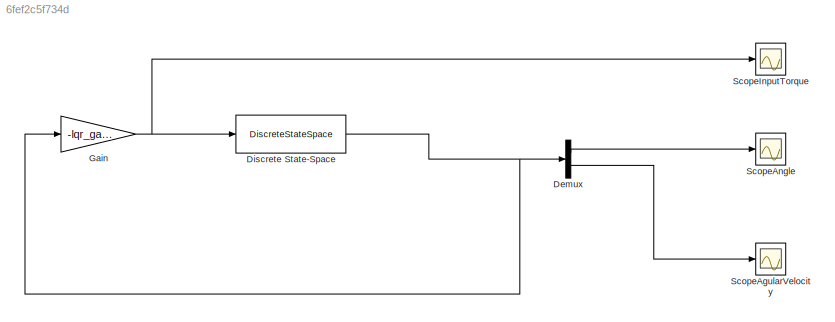
MODEL slx_6fef2c5f734d
KIND model
BLOCK [Demux] Demux
  DisplayOption = bar
  Outputs = 2
  Ports = [1, 2]
BLOCK [DiscreteStateSpace] Discrete State-Space
  A = discrete_state_space_model.A
  B = discrete_state_space_model.B
  C = eye(4)
  D = zeros(4,2)
  X0 = [0.2 0.3 0 0]
BLOCK [Gain] Gain
  Gain = -lqr_gain_discrete
  Multiplication = Matrix(K*u) (u vector)
  OutDataTypeStr = Inherit: Inherit via internal rule
  ParamDataTypeStr = Inherit: Inherit via internal rule
  SaturateOnIntegerOverflow = off
BLOCK [Scope] ScopeAgularVelocity
  DataFormat = StructureWithTime
  Floating = off
  LimitDataPoints = off
  NumInputPorts = 1
  Ports = [1]
  SaveName = jointVelocity
  SaveToWorkspace = on
  ShowLegends = off
  TimeRange = 10
  YMax = 30
  YMin = -40
BLOCK [Scope] ScopeAngle
  DataFormat = StructureWithTime
  Floating = off
  LimitDataPoints = off
  NumInputPorts = 1
  Ports = [1]
  SaveName = jointAngle
  SaveToWorkspace = on
  ShowLegends = off
  TimeRange = 10
  YMax = 0.03
  YMin = -0.005
BLOCK [Scope] ScopeInputTorque
  DataFormat = StructureWithTime
  Floating = off
  LimitDataPoints = off
  NumInputPorts = 1
  Ports = [1]
  SaveName = torque
  SaveToWorkspace = on
  ShowLegends = off
  YMax = 1
  YMin = -1
LINE Demux:1 -> ScopeAngle:1
LINE Demux:2 -> ScopeAgularVelocity:1
NET Discrete State-Space:1 -> Demux:1, Gain:1
NET Gain:1 -> Discrete State-Space:1, ScopeInputTorque:1
note: NET lines group one-source signal fan-out (src -> all destinations, sorted); 1:1 wires keep LINE
